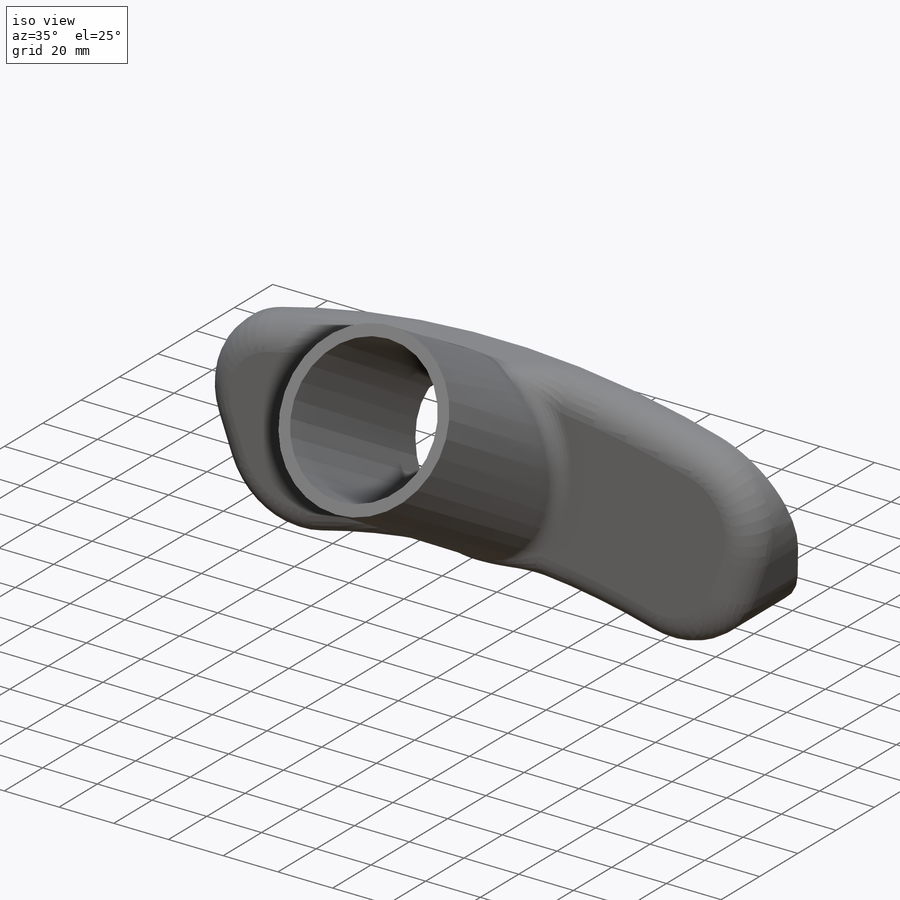
[diagram: iso view]
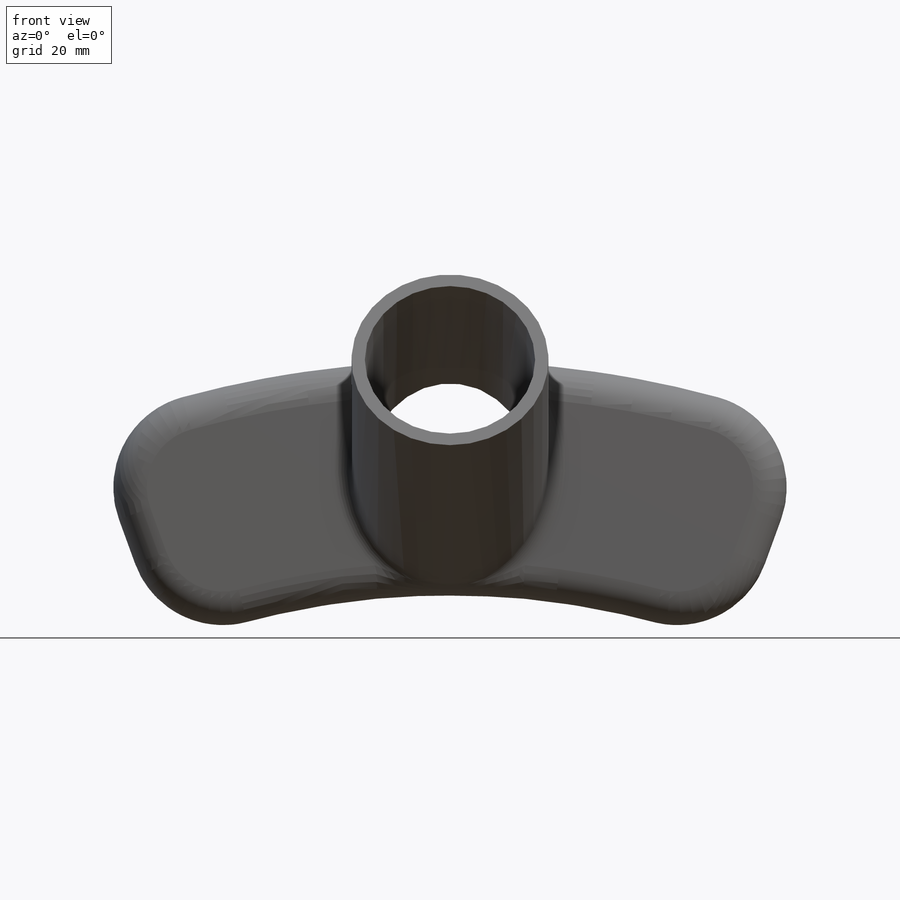
[diagram: front view]
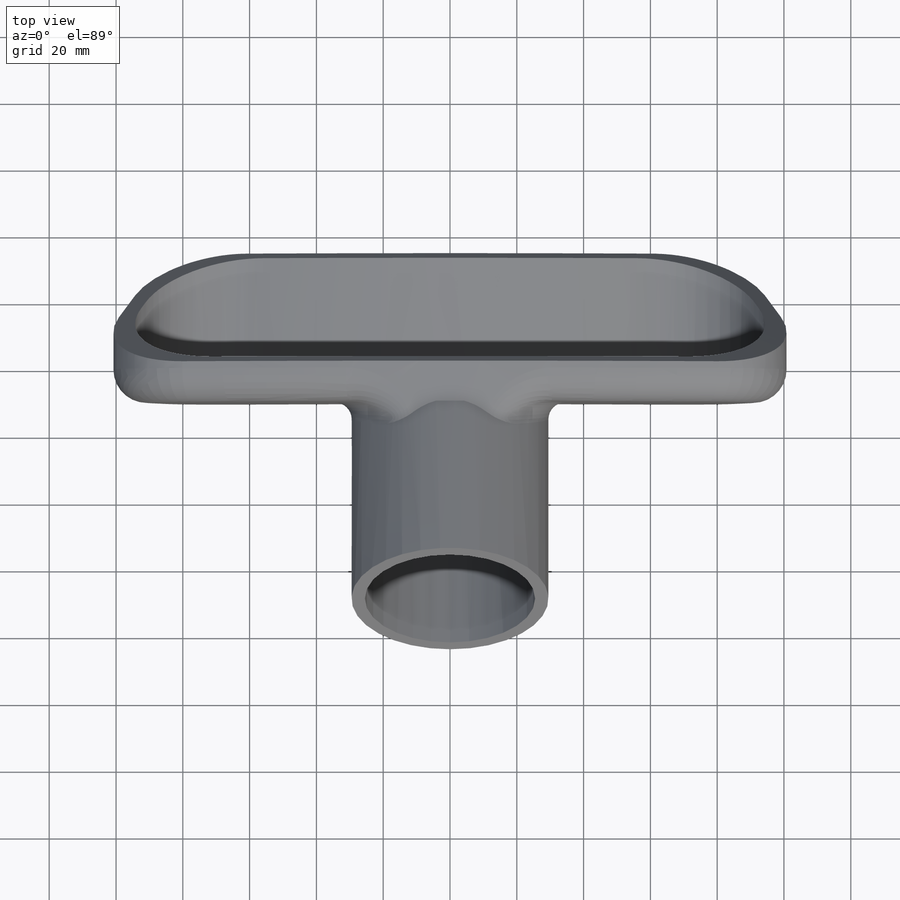
[diagram: top view]
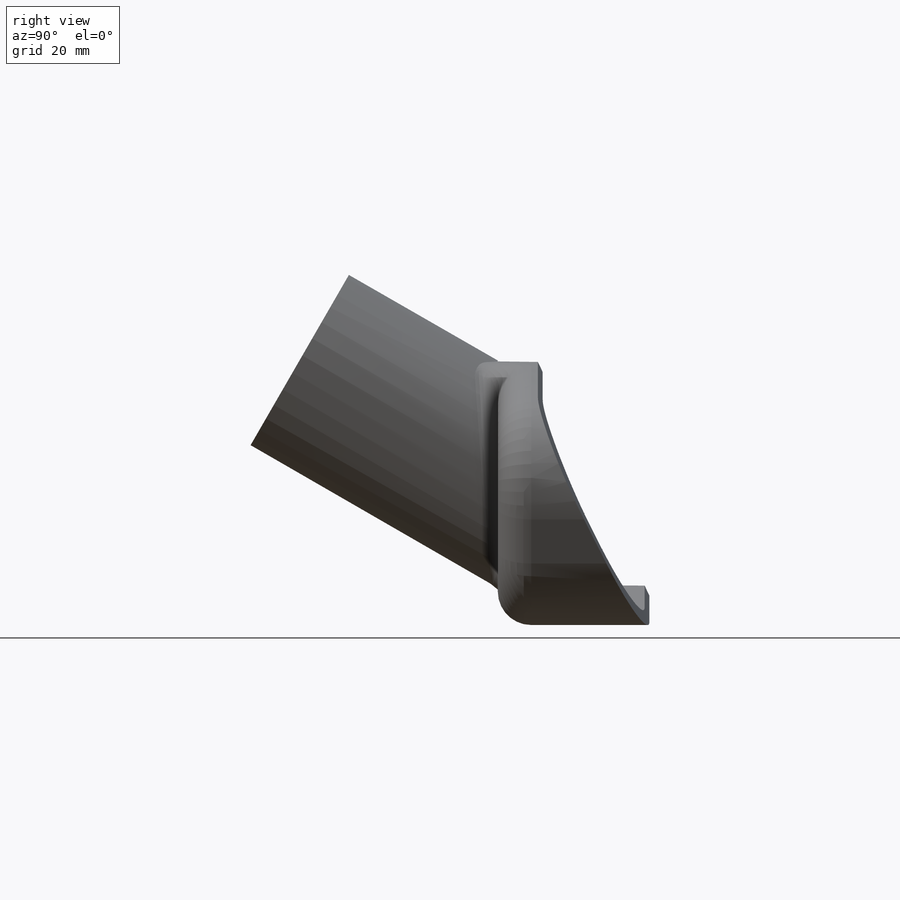
[diagram: right view]
SOLIDWORKS PART (.sldprt)
format: sldprt  version: not decoded by parser v0  size: 422,400 bytes
history: native  units: mm
features: sketch x5, fillet x5, extrude x3, plane x3, material x1, revolve x1, cut_extrude x1 (+11 scaffold rows collapsed)
feature tree (30):
  scaffold x11  (default folders/planes/origin — collapsed)
  material  "Material <not specified>"
  sketch  "Sketch1"  dims[c1.D1=225.0mm c1.D2=230.0mm c2.D2=25.5deg c2.D3=4.0mm c2.D4=3.0mm c2.D5=3.0mm c2.D6=235.0mm c2.D7=70.0mm c2.D8=12.0mm]
  revolve  "Revolve1"  Angle=20deg
  sketch  "Sketch2"
  extrude  "Boss-Extrude1"  Depth=5mm
  sketch  "Sketch3"
  extrude  "Boss-Extrude2"  Depth=5mm
  fillet  "Fillet2"  Radius=30mm
  fillet  "Fillet3"  Radius=28mm
  plane  "Plane1"  Offset=255mm
  plane  "Plane2"
  plane  "Plane3"  Offset=120mm
  sketch  "Sketch4"  dims[D1=59.0mm D2=11.0mm D3=~45.722249mm]
  extrude  "Boss-Extrude3"  [1 undecoded]
  sketch  "Sketch5"  dims[D1=4.0mm]
  cut_extrude  "Cut-Extrude1"  [1 undecoded]
  fillet  "Fillet4"  Radius=5mm
  fillet  "Fillet6"  Radius=5mm
  fillet  "Fillet7"  Radius=10mm
decode coverage: 11 of 15 modeling features carry decoded parameters
note: ~ marks probable driven/reference dimensions
note: 2 parameter values undecoded
note: suppression state not decoded; provenance and decode notes live in map.json
